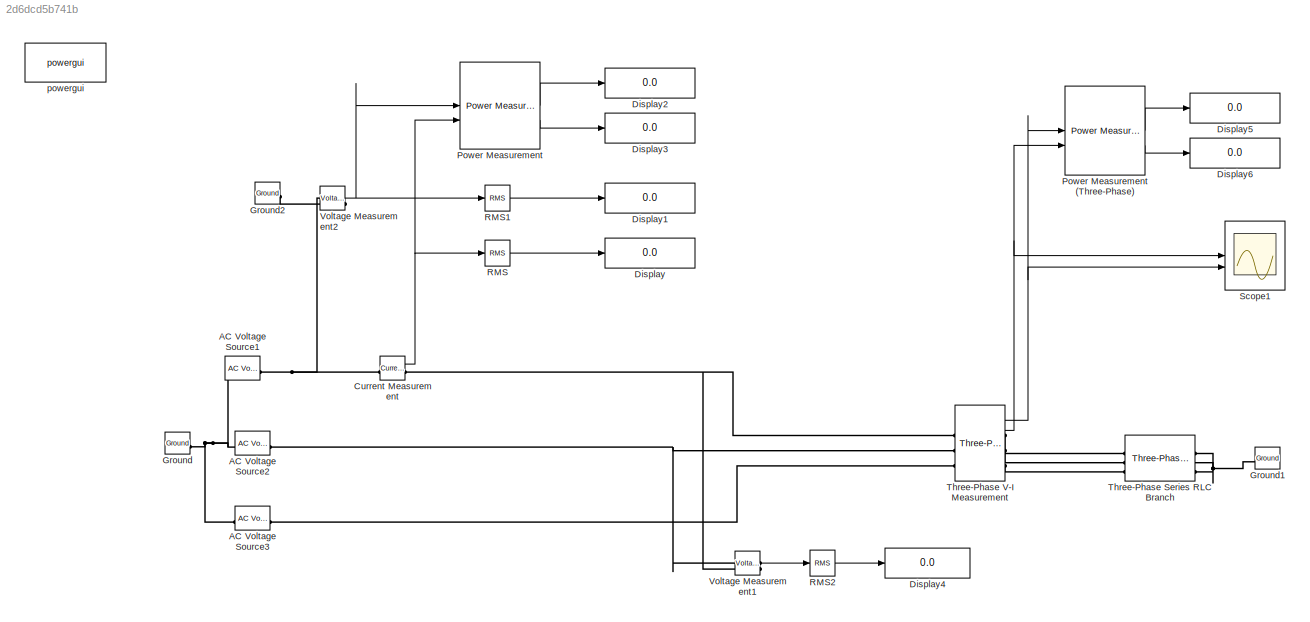
MODEL slx_2d6dcd5b741b
KIND model
CONFIG AbsTol = auto
CONFIG EnableMultiTasking = off
CONFIG FixedStep = auto
CONFIG MaxStep = auto
CONFIG MinStep = auto
CONFIG RelTol = 1e-3
CONFIG SampleTimeConstraint = Unconstrained
CONFIG SolverName = VariableStepAuto
CONFIG StartTime = 0.0
CONFIG StopTime = 0.02
BLOCK [Reference] AC Voltage Source1  REF=spsACVoltageSourceLib/AC Voltage Source
  LibrarySourceBlock = sps_lib/Sources/AC Voltage Source
  NameLocation = left
  SourceBlock = spsACVoltageSourceLib/AC Voltage Source
  SourceType = AC Voltage Source
BLOCK [Reference] AC Voltage Source2  REF=spsACVoltageSourceLib/AC Voltage Source
  LibrarySourceBlock = sps_lib/Sources/AC Voltage Source
  NameLocation = left
  SourceBlock = spsACVoltageSourceLib/AC Voltage Source
  SourceType = AC Voltage Source
BLOCK [Reference] AC Voltage Source3  REF=spsACVoltageSourceLib/AC Voltage Source
  LibrarySourceBlock = sps_lib/Sources/AC Voltage Source
  NameLocation = left
  SourceBlock = spsACVoltageSourceLib/AC Voltage Source
  SourceType = AC Voltage Source
BLOCK [Reference] Current Measurement  REF=spsCurrentMeasurementLib/Current Measurement
  LibrarySourceBlock = sps_lib/Sensors and Measurements/Current Measurement
  SourceBlock = spsCurrentMeasurementLib/Current Measurement
  SourceType = Current Measurement
  UserDataPersistent = on
BLOCK [Display] Display
  Decimation = 1
  Format = bank
BLOCK [Display] Display1
  Decimation = 1
  Format = bank
BLOCK [Display] Display2
  Decimation = 1
  Format = bank
BLOCK [Display] Display3
  Decimation = 1
  Format = bank
BLOCK [Display] Display4
  Decimation = 1
  Format = bank
BLOCK [Display] Display5
  Decimation = 1
  Format = bank
BLOCK [Display] Display6
  Decimation = 1
  Format = bank
BLOCK [Reference] Ground  REF=spsGroundLib/Ground
  LibrarySourceBlock = sps_lib/Utilities/Ground
  SourceBlock = spsGroundLib/Ground
  SourceType = Ground
BLOCK [Reference] Ground1  REF=spsGroundLib/Ground
  LibrarySourceBlock = sps_lib/Utilities/Ground
  SourceBlock = spsGroundLib/Ground
  SourceType = Ground
BLOCK [Reference] Ground2  REF=spsGroundLib/Ground
  LibrarySourceBlock = sps_lib/Utilities/Ground
  SourceBlock = spsGroundLib/Ground
  SourceType = Ground
BLOCK [Reference] Power Measurement  REF=eePowerMeasurement/Power
Measurement
  LibrarySourceBlock = ee_sl_lib/Measurements/Power\nMeasurement
  SourceBlock = eePowerMeasurement/Power\nMeasurement
  SourceType = Power Measurement
BLOCK [Reference] Power Measurement (Three-Phase)  REF=eePowerMeasurement/Power Measurement
(Three-Phase)
  LibrarySourceBlock = ee_sl_lib/Measurements/Power Measurement\n(Three-Phase)
  SourceBlock = eePowerMeasurement/Power Measurement\n(Three-Phase)
  SourceType = Power Measurement (Three-Phase)
BLOCK [Reference] RMS  REF=spsRMSLib/RMS
  LibrarySourceBlock = sps_lib/Sensors and Measurements/RMS
  SourceBlock = spsRMSLib/RMS
  SourceType = RMS
BLOCK [Reference] RMS1  REF=spsRMSLib/RMS
  LibrarySourceBlock = sps_lib/Sensors and Measurements/RMS
  SourceBlock = spsRMSLib/RMS
  SourceType = RMS
BLOCK [Reference] RMS2  REF=spsRMSLib/RMS
  LibrarySourceBlock = sps_lib/Sensors and Measurements/RMS
  SourceBlock = spsRMSLib/RMS
  SourceType = RMS
BLOCK [Scope] Scope1
  Floating = off
  NumInputPorts = 2
  ScopeSpecificationString = Simulink.scopes.TimeScopeBlockCfg('CurrentConfiguration', extmgr.ConfigurationSet(extmgr.Configuration('Core','General UI',true),extmgr.Configuration('Core','Source UI',true),extmgr.Configuration('Sources','WiredSimulink',true,'DataLoggingVariableName','ScopeData1'),extmgr.Configuration('Visuals','Time Domain',true,'PlotType','Line','SerializedDisplays',{struct('MinYLimReal','-194.45183','MaxYLimR...<+2009ch>
BLOCK [Reference] Three-Phase Series RLC Branch  REF=spsThreePhaseSeriesRLCBranchLib/Three-Phase
Series RLC Branch
  AttributesFormatString = \n
  LibrarySourceBlock = sps_lib/Passives/Three-Phase\nSeries RLC Branch
  SourceBlock = spsThreePhaseSeriesRLCBranchLib/Three-Phase\nSeries RLC Branch
  SourceType = Three-Phase Series RLC Branch
BLOCK [Reference] Three-Phase V-I Measurement  REF=spsThreePhaseVIMeasurementLib/Three-Phase
V-I Measurement
  LibrarySourceBlock = sps_lib/Sensors and Measurements/Three-Phase\nV-I Measurement
  SourceBlock = spsThreePhaseVIMeasurementLib/Three-Phase\nV-I Measurement
  SourceType = Three-Phase VI Measurement
BLOCK [Reference] Voltage Measurement1  REF=spsVoltageMeasurementLib/Voltage Measurement
  LibrarySourceBlock = sps_lib/Sensors and Measurements/Voltage Measurement
  SourceBlock = spsVoltageMeasurementLib/Voltage Measurement
  SourceType = Voltage Measurement
  UserDataPersistent = on
BLOCK [Reference] Voltage Measurement2  REF=spsVoltageMeasurementLib/Voltage Measurement
  LibrarySourceBlock = sps_lib/Sensors and Measurements/Voltage Measurement
  SourceBlock = spsVoltageMeasurementLib/Voltage Measurement
  SourceType = Voltage Measurement
  UserDataPersistent = on
BLOCK [Reference] powergui  REF=sps_lib/powergui
  LibrarySourceBlock = sps_lib/powergui
  Priority = 1
  SourceBlock = sps_lib/powergui
  SourceType = PSB option menu block
NET Current Measurement:1 -> Power Measurement:2, RMS:1
LINE Power Measurement (Three-Phase):1 -> Display5:1
LINE Power Measurement (Three-Phase):2 -> Display6:1
LINE Power Measurement:1 -> Display2:1
LINE Power Measurement:2 -> Display3:1
LINE RMS1:1 -> Display1:1
LINE RMS2:1 -> Display4:1
LINE RMS:1 -> Display:1
NET Three-Phase V-I Measurement:1 -> Power Measurement (Three-Phase):1, Scope1:2
NET Three-Phase V-I Measurement:2 -> Power Measurement (Three-Phase):2, Scope1:1
LINE Voltage Measurement1:1 -> RMS2:1
NET Voltage Measurement2:1 -> Power Measurement:1, RMS1:1
PNET net1: AC Voltage Source1:LConn1 -- AC Voltage Source2:LConn1 -- AC Voltage Source3:LConn1 -- Ground:LConn1
PNET net2: AC Voltage Source1:RConn1 -- Current Measurement:LConn1 -- Voltage Measurement2:LConn1
PNET net3: AC Voltage Source2:RConn1 -- Three-Phase V-I Measurement:LConn2 -- Voltage Measurement1:LConn1
PLINE AC Voltage Source3:RConn1 -- Three-Phase V-I Measurement:LConn3
PNET net4: Current Measurement:RConn1 -- Three-Phase V-I Measurement:LConn1 -- Voltage Measurement1:LConn2
PNET net5: Ground1:LConn1 -- Three-Phase Series RLC Branch:RConn1 -- Three-Phase Series RLC Branch:RConn2 -- Three-Phase Series RLC Branch:RConn3
PLINE Ground2:LConn1 -- Voltage Measurement2:LConn2
PLINE Three-Phase Series RLC Branch:LConn1 -- Three-Phase V-I Measurement:RConn1
PLINE Three-Phase Series RLC Branch:LConn2 -- Three-Phase V-I Measurement:RConn2
PLINE Three-Phase Series RLC Branch:LConn3 -- Three-Phase V-I Measurement:RConn3
note: NET lines group one-source signal fan-out (src -> all destinations, sorted); 1:1 wires keep LINE; PNET lines group multi-terminal physical nets as a canonical sorted terminal list (undirected conserving connections); 2-terminal nets keep the pairwise PLINE form
